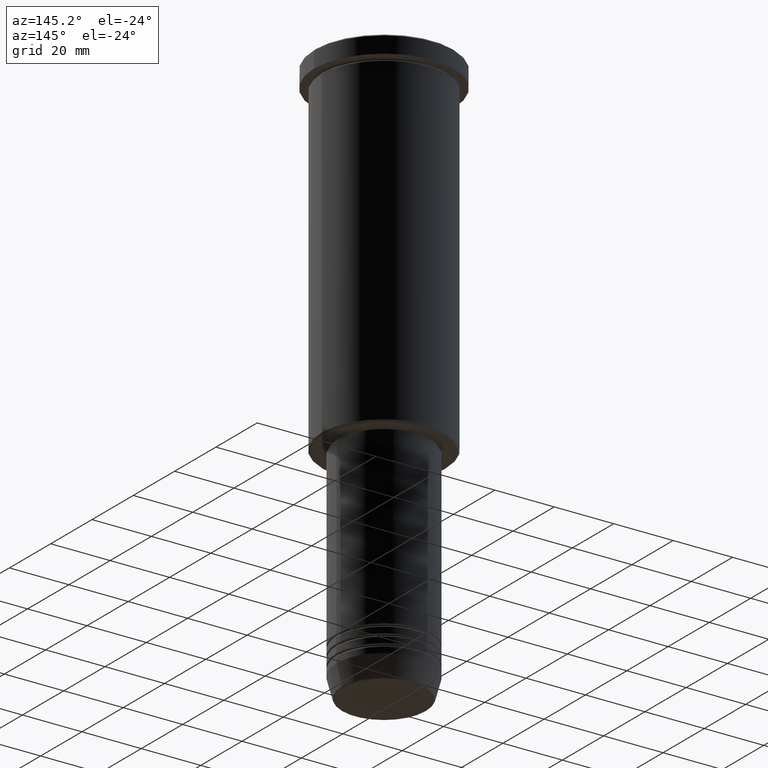
[diagram: clean part render]
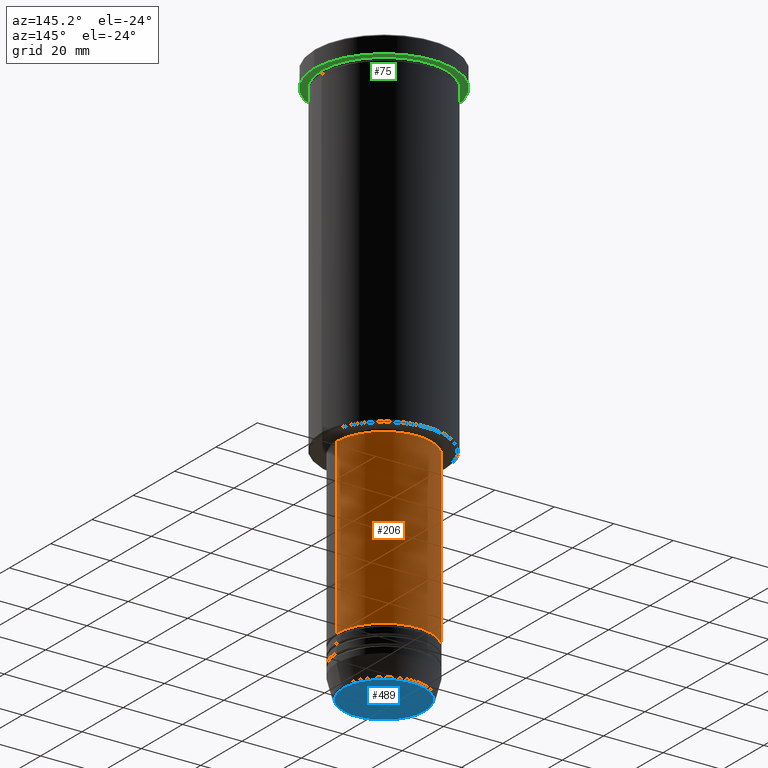
[diagram: same view with three faces highlighted in distinct colors, each labeled with its STEP entity id]
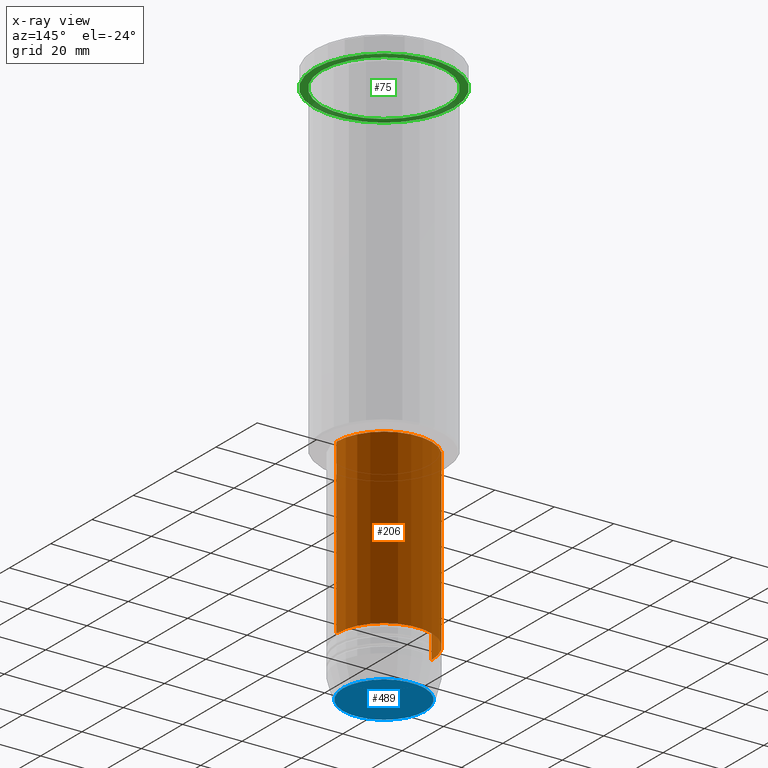
[diagram: x-ray of the same camera — body ghosted, the three highlighted faces saturated]
A machine part, auxiliary view with three faces highlighted in distinct colors.
The next image is the same camera in x-ray (body ghosted, the three faces saturated) — at least one of them is partly hidden behind the body in this view.
Their STEP definitions:

[orange] entity #206 — the highlighted cylindrical surface (partial cylindrical patch) has radius 16 mm, axis along (-0, -0, 1).
#14 = DIRECTION ( 'NONE',  ( -0.000000000000000000, -0.000000000000000000, 1.000000000000000000 ) ) ;
#16 = CARTESIAN_POINT ( 'NONE',  ( 16.00000000000000000, 0.000000000000000000, -117.0000000000000142 ) ) ;
#20 = VERTEX_POINT ( 'NONE', #16 ) ;
#61 = ORIENTED_EDGE ( 'NONE', *, *, #90, .T. ) ;
#64 = VERTEX_POINT ( 'NONE', #950 ) ;
#90 = EDGE_CURVE ( 'NONE', #64, #130, #98, .T. ) ;
#91 = CARTESIAN_POINT ( 'NONE',  ( -16.00000000000000000, 1.959434878635765131E-15, 0.000000000000000000 ) ) ;
#98 = CIRCLE ( 'NONE', #460, 16.00000000000000000 ) ;
#130 = VERTEX_POINT ( 'NONE', #137 ) ;
#137 = CARTESIAN_POINT ( 'NONE',  ( -16.00000000000000000, 1.959434878635765131E-15, -175.0000000000000000 ) ) ;
#198 = AXIS2_PLACEMENT_3D ( 'NONE', #1011, #14, #376 ) ;
#206 = ADVANCED_FACE ( 'NONE', ( #250 ), #510, .T. ) ;
#250 = FACE_OUTER_BOUND ( 'NONE', #339, .T. ) ;
#258 = LINE ( 'NONE', #91, #750 ) ;
#312 = EDGE_CURVE ( 'NONE', #130, #910, #258, .T. ) ;
#339 = EDGE_LOOP ( 'NONE', ( #61, #708, #347, #1003 ) ) ;
#347 = ORIENTED_EDGE ( 'NONE', *, *, #874, .F. ) ;
#349 = DIRECTION ( 'NONE',  ( -0.000000000000000000, -0.000000000000000000, 1.000000000000000000 ) ) ;
#376 = DIRECTION ( 'NONE',  ( 1.000000000000000000, 0.000000000000000000, 0.000000000000000000 ) ) ;
#414 = CARTESIAN_POINT ( 'NONE',  ( 0.000000000000000000, 0.000000000000000000, 0.000000000000000000 ) ) ;
#460 = AXIS2_PLACEMENT_3D ( 'NONE', #1156, #1051, #953 ) ;
#503 = CIRCLE ( 'NONE', #198, 16.00000000000000000 ) ;
#510 = CYLINDRICAL_SURFACE ( 'NONE', #604, 16.00000000000000000 ) ;
#575 = DIRECTION ( 'NONE',  ( -0.000000000000000000, -0.000000000000000000, 1.000000000000000000 ) ) ;
#604 = AXIS2_PLACEMENT_3D ( 'NONE', #414, #605, #964 ) ;
#605 = DIRECTION ( 'NONE',  ( -0.000000000000000000, -0.000000000000000000, 1.000000000000000000 ) ) ;
#708 = ORIENTED_EDGE ( 'NONE', *, *, #312, .T. ) ;
#750 = VECTOR ( 'NONE', #349, 1000.000000000000000 ) ;
#874 = EDGE_CURVE ( 'NONE', #20, #910, #503, .T. ) ;
#898 = CARTESIAN_POINT ( 'NONE',  ( -16.00000000000000000, 1.959434878635765131E-15, -117.0000000000000142 ) ) ;
#910 = VERTEX_POINT ( 'NONE', #898 ) ;
#950 = CARTESIAN_POINT ( 'NONE',  ( 16.00000000000000000, 0.000000000000000000, -175.0000000000000000 ) ) ;
#953 = DIRECTION ( 'NONE',  ( 1.000000000000000000, 0.000000000000000000, 0.000000000000000000 ) ) ;
#964 = DIRECTION ( 'NONE',  ( 1.000000000000000000, 0.000000000000000000, 0.000000000000000000 ) ) ;
#980 = VECTOR ( 'NONE', #575, 1000.000000000000000 ) ;
#1003 = ORIENTED_EDGE ( 'NONE', *, *, #1074, .F. ) ;
#1011 = CARTESIAN_POINT ( 'NONE',  ( 0.000000000000000000, 0.000000000000000000, -117.0000000000000142 ) ) ;
#1044 = LINE ( 'NONE', #1122, #980 ) ;
#1051 = DIRECTION ( 'NONE',  ( -0.000000000000000000, -0.000000000000000000, 1.000000000000000000 ) ) ;
#1074 = EDGE_CURVE ( 'NONE', #64, #20, #1044, .T. ) ;
#1122 = CARTESIAN_POINT ( 'NONE',  ( 16.00000000000000000, 0.000000000000000000, 0.000000000000000000 ) ) ;
#1156 = CARTESIAN_POINT ( 'NONE',  ( 0.000000000000000000, 0.000000000000000000, -175.0000000000000000 ) ) ;

[blue] entity #489 — the highlighted planar face has unit normal (0, -0, 1).
#43 = AXIS2_PLACEMENT_3D ( 'NONE', #298, #569, #759 ) ;
#52 = DIRECTION ( 'NONE',  ( 1.000000000000000000, 0.000000000000000000, 0.000000000000000000 ) ) ;
#63 = FACE_OUTER_BOUND ( 'NONE', #1113, .T. ) ;
#99 = DIRECTION ( 'NONE',  ( 1.000000000000000000, 0.000000000000000000, 0.000000000000000000 ) ) ;
#102 = AXIS2_PLACEMENT_3D ( 'NONE', #169, #721, #99 ) ;
#107 = EDGE_CURVE ( 'NONE', #153, #611, #195, .T. ) ;
#121 = ORIENTED_EDGE ( 'NONE', *, *, #905, .T. ) ;
#153 = VERTEX_POINT ( 'NONE', #332 ) ;
#155 = DIRECTION ( 'NONE',  ( 0.000000000000000000, 0.000000000000000000, -1.000000000000000000 ) ) ;
#169 = CARTESIAN_POINT ( 'NONE',  ( 0.000000000000000000, 0.000000000000000000, -191.0000000000000000 ) ) ;
#195 = CIRCLE ( 'NONE', #786, 13.74069215899266538 ) ;
#298 = CARTESIAN_POINT ( 'NONE',  ( 0.000000000000000000, 0.000000000000000000, -191.0000000000000000 ) ) ;
#332 = CARTESIAN_POINT ( 'NONE',  ( -13.74069215899266538, 1.712322416342416577E-15, -191.0000000000000000 ) ) ;
#489 = ADVANCED_FACE ( 'NONE', ( #63 ), #772, .F. ) ;
#519 = CARTESIAN_POINT ( 'NONE',  ( 0.000000000000000000, 0.000000000000000000, -191.0000000000000000 ) ) ;
#569 = DIRECTION ( 'NONE',  ( 0.000000000000000000, -0.000000000000000000, 1.000000000000000000 ) ) ;
#611 = VERTEX_POINT ( 'NONE', #818 ) ;
#721 = DIRECTION ( 'NONE',  ( 0.000000000000000000, 0.000000000000000000, -1.000000000000000000 ) ) ;
#759 = DIRECTION ( 'NONE',  ( 1.000000000000000000, 0.000000000000000000, 0.000000000000000000 ) ) ;
#772 = PLANE ( 'NONE',  #43 ) ;
#786 = AXIS2_PLACEMENT_3D ( 'NONE', #519, #155, #52 ) ;
#790 = CIRCLE ( 'NONE', #102, 13.74069215899266538 ) ;
#818 = CARTESIAN_POINT ( 'NONE',  ( 13.74069215899266538, 0.000000000000000000, -191.0000000000000000 ) ) ;
#905 = EDGE_CURVE ( 'NONE', #611, #153, #790, .T. ) ;
#1081 = ORIENTED_EDGE ( 'NONE', *, *, #107, .T. ) ;
#1113 = EDGE_LOOP ( 'NONE', ( #121, #1081 ) ) ;

[green] entity #75 — the highlighted planar face has unit normal (0, 0, -1).
#55 = DIRECTION ( 'NONE',  ( 1.000000000000000000, 0.000000000000000000, 0.000000000000000000 ) ) ;
#57 = CARTESIAN_POINT ( 'NONE',  ( 0.000000000000000000, 23.50000000000000000, -5.999999999999994671 ) ) ;
#59 = AXIS2_PLACEMENT_3D ( 'NONE', #57, #318, #872 ) ;
#75 = ADVANCED_FACE ( 'NONE', ( #595, #418 ), #876, .T. ) ;
#96 = EDGE_LOOP ( 'NONE', ( #1163, #565 ) ) ;
#126 = CARTESIAN_POINT ( 'NONE',  ( 0.000000000000000000, 0.000000000000000000, -5.999999999999994671 ) ) ;
#194 = DIRECTION ( 'NONE',  ( -0.000000000000000000, -0.000000000000000000, 1.000000000000000000 ) ) ;
#213 = CARTESIAN_POINT ( 'NONE',  ( -23.50000000000000000, 2.877919977996280320E-15, -5.999999999999994671 ) ) ;
#318 = DIRECTION ( 'NONE',  ( 0.000000000000000000, 0.000000000000000000, -1.000000000000000000 ) ) ;
#359 = DIRECTION ( 'NONE',  ( -0.000000000000000000, -0.000000000000000000, 1.000000000000000000 ) ) ;
#368 = CARTESIAN_POINT ( 'NONE',  ( 0.000000000000000000, 0.000000000000000000, -5.999999999999994671 ) ) ;
#369 = AXIS2_PLACEMENT_3D ( 'NONE', #126, #194, #556 ) ;
#375 = EDGE_CURVE ( 'NONE', #1170, #1061, #881, .T. ) ;
#418 = FACE_OUTER_BOUND ( 'NONE', #96, .T. ) ;
#426 = CIRCLE ( 'NONE', #369, 21.00000000000000000 ) ;
#462 = CIRCLE ( 'NONE', #730, 23.50000000000000000 ) ;
#465 = CARTESIAN_POINT ( 'NONE',  ( 23.50000000000000000, 0.000000000000000000, -5.999999999999994671 ) ) ;
#472 = EDGE_CURVE ( 'NONE', #1061, #1170, #426, .T. ) ;
#511 = CARTESIAN_POINT ( 'NONE',  ( -21.00000000000000000, 0.000000000000000000, -5.999999999999994671 ) ) ;
#555 = DIRECTION ( 'NONE',  ( -0.000000000000000000, -0.000000000000000000, 1.000000000000000000 ) ) ;
#556 = DIRECTION ( 'NONE',  ( -1.000000000000000000, 0.000000000000000000, 0.000000000000000000 ) ) ;
#560 = EDGE_CURVE ( 'NONE', #1159, #1049, #462, .T. ) ;
#565 = ORIENTED_EDGE ( 'NONE', *, *, #962, .F. ) ;
#577 = CIRCLE ( 'NONE', #901, 23.50000000000000000 ) ;
#581 = CARTESIAN_POINT ( 'NONE',  ( 21.00000000000000000, 2.571758278209441661E-15, -5.999999999999994671 ) ) ;
#595 = FACE_BOUND ( 'NONE', #804, .T. ) ;
#618 = DIRECTION ( 'NONE',  ( -1.000000000000000000, 0.000000000000000000, 0.000000000000000000 ) ) ;
#634 = DIRECTION ( 'NONE',  ( 1.000000000000000000, 0.000000000000000000, 0.000000000000000000 ) ) ;
#696 = CARTESIAN_POINT ( 'NONE',  ( 0.000000000000000000, 0.000000000000000000, -5.999999999999994671 ) ) ;
#730 = AXIS2_PLACEMENT_3D ( 'NONE', #696, #797, #634 ) ;
#760 = ORIENTED_EDGE ( 'NONE', *, *, #472, .T. ) ;
#797 = DIRECTION ( 'NONE',  ( -0.000000000000000000, -0.000000000000000000, 1.000000000000000000 ) ) ;
#804 = EDGE_LOOP ( 'NONE', ( #1029, #760 ) ) ;
#872 = DIRECTION ( 'NONE',  ( -1.000000000000000000, 0.000000000000000000, -0.000000000000000000 ) ) ;
#876 = PLANE ( 'NONE',  #59 ) ;
#881 = CIRCLE ( 'NONE', #1099, 21.00000000000000000 ) ;
#901 = AXIS2_PLACEMENT_3D ( 'NONE', #368, #555, #55 ) ;
#962 = EDGE_CURVE ( 'NONE', #1049, #1159, #577, .T. ) ;
#1029 = ORIENTED_EDGE ( 'NONE', *, *, #375, .T. ) ;
#1049 = VERTEX_POINT ( 'NONE', #213 ) ;
#1061 = VERTEX_POINT ( 'NONE', #581 ) ;
#1099 = AXIS2_PLACEMENT_3D ( 'NONE', #1179, #359, #618 ) ;
#1159 = VERTEX_POINT ( 'NONE', #465 ) ;
#1163 = ORIENTED_EDGE ( 'NONE', *, *, #560, .F. ) ;
#1170 = VERTEX_POINT ( 'NONE', #511 ) ;
#1179 = CARTESIAN_POINT ( 'NONE',  ( 0.000000000000000000, 0.000000000000000000, -5.999999999999994671 ) ) ;